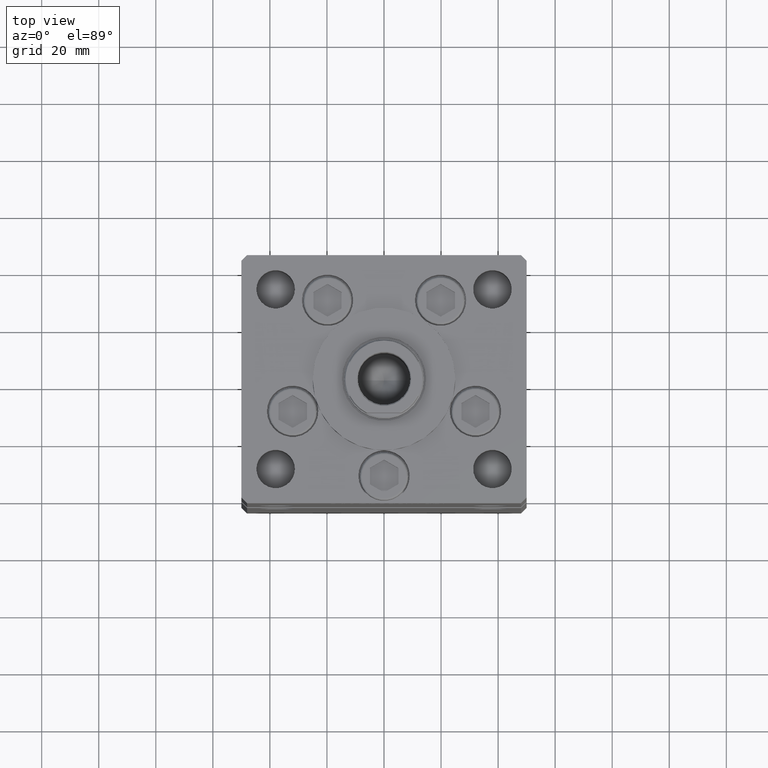
[diagram: clean part render]
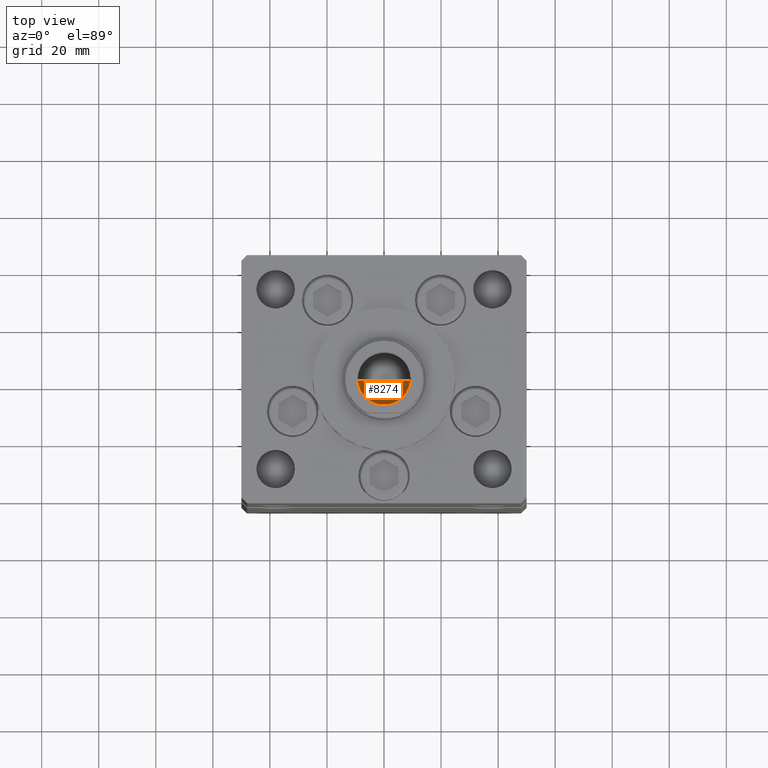
[diagram: same view with one face highlighted and labeled with its STEP entity id]
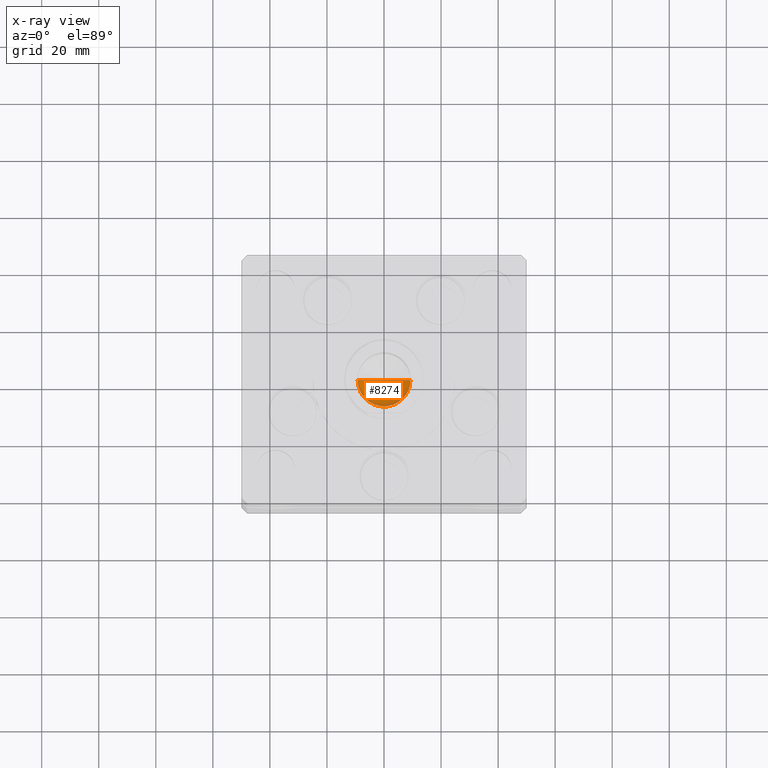
[diagram: x-ray of the same camera — body ghosted, the highlighted face saturated]
A machine part, top view. The second image highlights one B-rep face of the part: STEP entity #8274.
The next image is the same camera in x-ray: the body ghosted, the highlighted face saturated — about 9% of this face is hidden behind the body in this view.
In plain terms, the highlighted conical surface has half-angle 59 deg.
Its self-contained STEP definition (entity closure, byte-faithful):
#2464 = AXIS2_PLACEMENT_3D ( 'NONE', #28340, #11114, #31293 ) ;
#5000 = AXIS2_PLACEMENT_3D ( 'NONE', #30336, #5838, #41917 ) ;
#5838 = DIRECTION ( 'NONE',  ( -0.000000000000000000, -0.000000000000000000, 1.000000000000000000 ) ) ;
#6830 = VERTEX_POINT ( 'NONE', #47233 ) ;
#7561 = DIRECTION ( 'NONE',  ( 0.8571673007021112234, 0.000000000000000000, 0.5150380749100560429 ) ) ;
#7625 = CONICAL_SURFACE ( 'NONE', #2464, 9.249999999999994671, 1.029744258676652313 ) ;
#8274 = ADVANCED_FACE ( 'NONE', ( #15147 ), #7625, .F. ) ;
#10715 = DIRECTION ( 'NONE',  ( -0.8571673007021112234, 1.049727191138617340E-16, 0.5150380749100560429 ) ) ;
#11114 = DIRECTION ( 'NONE',  ( -0.000000000000000000, -0.000000000000000000, 1.000000000000000000 ) ) ;
#12419 = CARTESIAN_POINT ( 'NONE',  ( 9.249999999999994671, 0.000000000000000000, 150.2500000000000000 ) ) ;
#13637 = VECTOR ( 'NONE', #7561, 1000.000000000000000 ) ;
#13817 = CARTESIAN_POINT ( 'NONE',  ( -1.046994375366439223E-14, 0.000000000000000000, 144.6920392739950501 ) ) ;
#14392 = VECTOR ( 'NONE', #10715, 1000.000000000000000 ) ;
#15147 = FACE_OUTER_BOUND ( 'NONE', #39243, .T. ) ;
#15288 = LINE ( 'NONE', #31695, #14392 ) ;
#15808 = CARTESIAN_POINT ( 'NONE',  ( 9.249999999999994671, 0.000000000000000000, 150.2500000000000000 ) ) ;
#17309 = ORIENTED_EDGE ( 'NONE', *, *, #31964, .T. ) ;
#28340 = CARTESIAN_POINT ( 'NONE',  ( 0.000000000000000000, 0.000000000000000000, 150.2500000000000000 ) ) ;
#30336 = CARTESIAN_POINT ( 'NONE',  ( 0.000000000000000000, 0.000000000000000000, 150.2500000000000000 ) ) ;
#31293 = DIRECTION ( 'NONE',  ( 1.000000000000000000, 0.000000000000000000, 0.000000000000000000 ) ) ;
#31695 = CARTESIAN_POINT ( 'NONE',  ( -9.249999999999994671, 1.132798289211300909E-15, 150.2500000000000000 ) ) ;
#31964 = EDGE_CURVE ( 'NONE', #45461, #6830, #15288, .T. ) ;
#32853 = LINE ( 'NONE', #12419, #13637 ) ;
#33185 = EDGE_CURVE ( 'NONE', #6830, #38614, #41090, .T. ) ;
#33925 = EDGE_CURVE ( 'NONE', #45461, #38614, #32853, .T. ) ;
#38614 = VERTEX_POINT ( 'NONE', #15808 ) ;
#39243 = EDGE_LOOP ( 'NONE', ( #50395, #17309, #48549 ) ) ;
#41090 = CIRCLE ( 'NONE', #5000, 9.249999999999994671 ) ;
#41917 = DIRECTION ( 'NONE',  ( 1.000000000000000000, 0.000000000000000000, 0.000000000000000000 ) ) ;
#45461 = VERTEX_POINT ( 'NONE', #13817 ) ;
#47233 = CARTESIAN_POINT ( 'NONE',  ( -9.249999999999994671, 1.132798289211300909E-15, 150.2500000000000000 ) ) ;
#48549 = ORIENTED_EDGE ( 'NONE', *, *, #33185, .T. ) ;
#50395 = ORIENTED_EDGE ( 'NONE', *, *, #33925, .F. ) ;